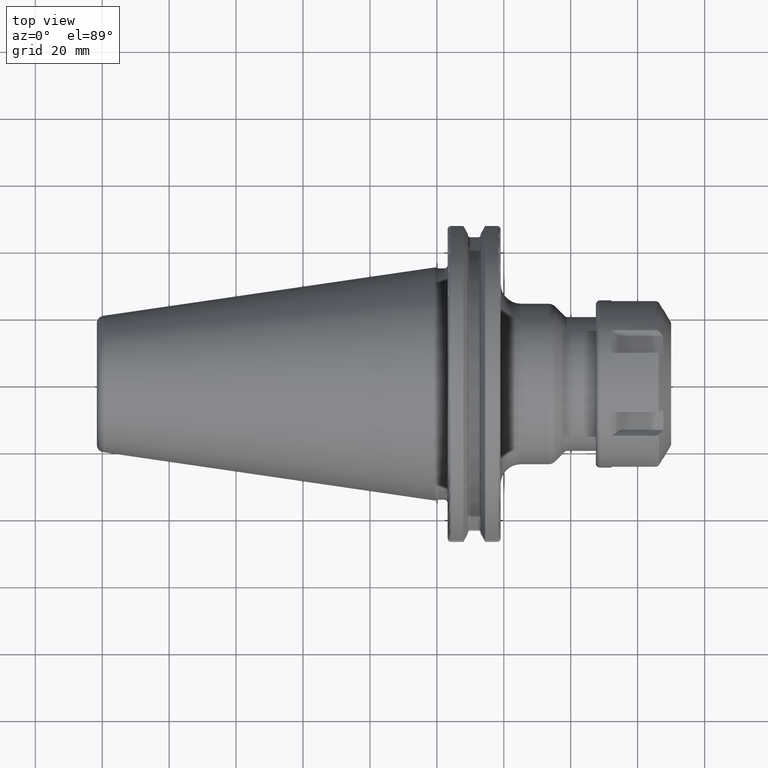
[diagram: clean part render]
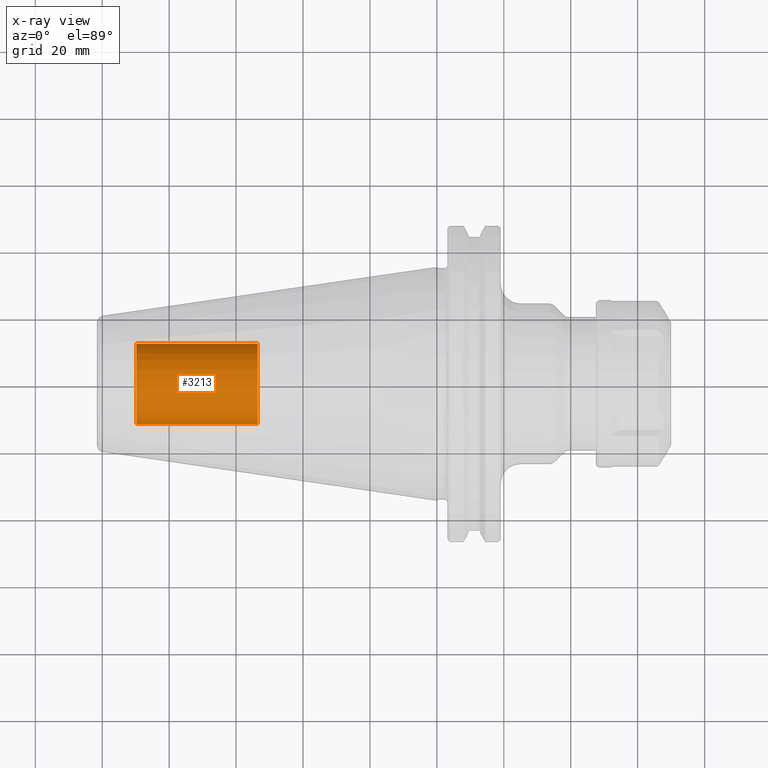
[diagram: x-ray — body ghosted, one internal face saturated and labeled with its STEP entity id]
A machine part, top view, then the same camera in x-ray: the body is ghosted and one INTERNAL B-rep face — a face not visible from any outside direction — is saturated and labeled: STEP entity #3213.
In plain terms, the highlighted cylindrical surface (partial cylindrical patch) has radius 12.0032 mm, axis along (1, 0, 0).
Its self-contained STEP definition (entity closure, byte-faithful):
#3139=DIRECTION('',(1.E0,0.E0,0.E0));
#3140=VECTOR('',#3139,3.625E1);
#3141=CARTESIAN_POINT('',(-8.985E1,-1.200325E1,0.E0));
#3142=LINE('',#3141,#3140);
#3143=CARTESIAN_POINT('',(-8.985E1,0.E0,0.E0));
#3144=DIRECTION('',(-1.E0,0.E0,0.E0));
#3145=DIRECTION('',(0.E0,-1.E0,0.E0));
#3146=AXIS2_PLACEMENT_3D('',#3143,#3144,#3145);
#3148=DIRECTION('',(1.E0,0.E0,0.E0));
#3149=VECTOR('',#3148,3.625E1);
#3150=CARTESIAN_POINT('',(-8.985E1,1.200325E1,0.E0));
#3151=LINE('',#3150,#3149);
#3152=CARTESIAN_POINT('',(-5.36E1,0.E0,0.E0));
#3153=DIRECTION('',(1.E0,0.E0,0.E0));
#3154=DIRECTION('',(0.E0,1.E0,0.E0));
#3155=AXIS2_PLACEMENT_3D('',#3152,#3153,#3154);
#3172=CARTESIAN_POINT('',(-8.985E1,1.200325E1,0.E0));
#3173=CARTESIAN_POINT('',(-8.985E1,-1.200325E1,0.E0));
#3174=VERTEX_POINT('',#3172);
#3175=VERTEX_POINT('',#3173);
#3176=CARTESIAN_POINT('',(-5.36E1,1.200325E1,0.E0));
#3177=CARTESIAN_POINT('',(-5.36E1,-1.200325E1,0.E0));
#3178=VERTEX_POINT('',#3176);
#3179=VERTEX_POINT('',#3177);
#3200=CARTESIAN_POINT('',(-8.985E1,0.E0,0.E0));
#3201=DIRECTION('',(1.E0,0.E0,0.E0));
#3202=DIRECTION('',(0.E0,1.E0,0.E0));
#3203=AXIS2_PLACEMENT_3D('',#3200,#3201,#3202);
#3204=CYLINDRICAL_SURFACE('',#3203,1.200325E1);
#3206=ORIENTED_EDGE('',*,*,#3205,.T.);
#3207=ORIENTED_EDGE('',*,*,#3195,.T.);
#3209=ORIENTED_EDGE('',*,*,#3208,.T.);
#3210=ORIENTED_EDGE('',*,*,#3191,.F.);
#3211=EDGE_LOOP('',(#3206,#3207,#3209,#3210));
#3212=FACE_OUTER_BOUND('',#3211,.F.);
#3213=ADVANCED_FACE('',(#3212),#3204,.T.);
#3147=CIRCLE('',#3146,1.200325E1);
#3156=CIRCLE('',#3155,1.200325E1);
#3191=EDGE_CURVE('',#3175,#3179,#3142,.T.);
#3195=EDGE_CURVE('',#3174,#3178,#3151,.T.);
#3205=EDGE_CURVE('',#3175,#3174,#3147,.T.);
#3208=EDGE_CURVE('',#3178,#3179,#3156,.T.);